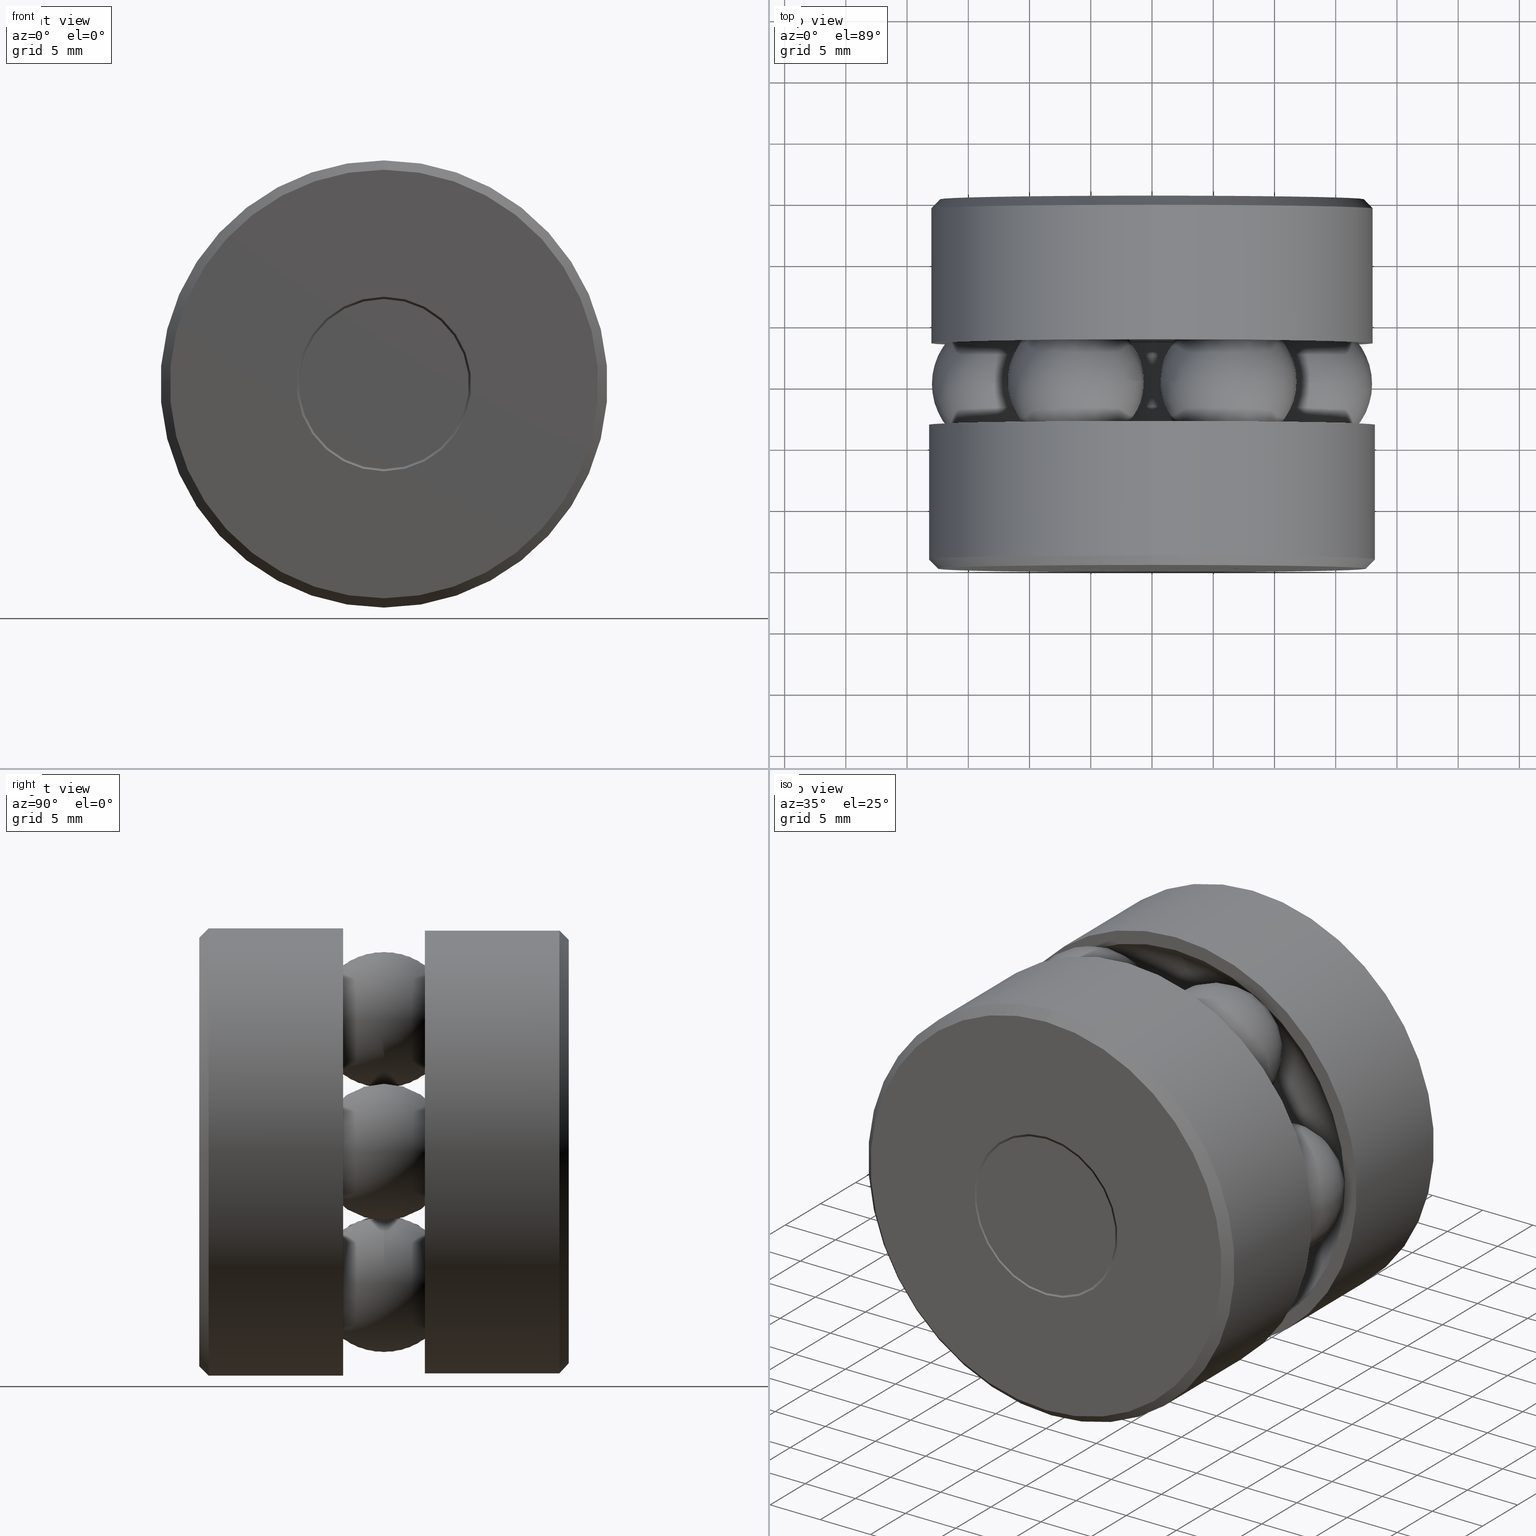
[diagram: canonical four-view strip — front | top / right | iso, engineering-drawing reading convention]
A machine part, canonical four-view strip (front | top / right | iso — engineering-drawing reading convention). The complete STEP part file that produces these views, byte-faithful:
ISO-10303-21;
HEADER;
FILE_DESCRIPTION (( 'STEP AP203' ),
    '1' );
FILE_NAME ('T-114RG_T-114RG-1007.step',
    '2016-02-04T15:34:12',
    ( '' ),
    ( '' ),
    'SwSTEP 2.0',
    'SolidWorks 2016',
    '' );
FILE_SCHEMA (( 'CONFIG_CONTROL_DESIGN' ));
ENDSEC;

DATA;
#1 = ORIENTED_EDGE ( 'NONE', *, *, #177, .F. ) ;
#2 = LOCAL_TIME ( 10, 34, 12.00000000000000000, #139 ) ;
#3 = DIRECTION ( 'NONE',  ( 0.0000000000000000000, 0.0000000000000000000, -1.000000000000000000 ) ) ;
#4 = EDGE_LOOP ( 'NONE', ( #30 ) ) ;
#5 = ORIENTED_EDGE ( 'NONE', *, *, #341, .F. ) ;
#6 = AXIS2_PLACEMENT_3D ( 'NONE', #135, #46, #45 ) ;
#7 = EDGE_LOOP ( 'NONE', ( #401 ) ) ;
#8 = CLOSED_SHELL ( 'NONE', ( #379 ) ) ;
#9 = DIRECTION ( 'NONE',  ( -0.0000000000000000000, 1.000000000000000000, -0.0000000000000000000 ) ) ;
#10 = CARTESIAN_POINT ( 'NONE',  ( 0.0000000000000000000, 0.7251500000000001800, 0.0000000000000000000 ) ) ;
#11 = AXIS2_PLACEMENT_3D ( 'NONE', #302, #65, #26 ) ;
#12 = ADVANCED_FACE ( 'NONE', ( ), #488, .T. ) ;
#13 = AXIS2_PLACEMENT_3D ( 'NONE', #412, #126, #59 ) ;
#14 = EDGE_LOOP ( 'NONE', ( #58 ) ) ;
#15 = ADVANCED_FACE ( 'NONE', ( #483, #487 ), #242, .T. ) ;
#16 = CALENDAR_DATE ( 2016, 4, 2 ) ;
#17 = MANIFOLD_SOLID_BREP ( 'Revolve3', #8 ) ;
#18 = DIRECTION ( 'NONE',  ( -0.0000000000000000000, 1.000000000000000000, -0.0000000000000000000 ) ) ;
#19 = PERSON_AND_ORGANIZATION_ROLE ( 'creator' ) ;
#20 = DIRECTION ( 'NONE',  ( 0.0000000000000000000, 0.0000000000000000000, 1.000000000000000000 ) ) ;
#21 = PRODUCT_DEFINITION_FORMATION_WITH_SPECIFIED_SOURCE ( 'ANY', '', #550, .NOT_KNOWN. ) ;
#22 = ORIENTED_EDGE ( 'NONE', *, *, #51, .T. ) ;
#23 = EDGE_LOOP ( 'NONE', ( #495 ) ) ;
#24 = CARTESIAN_POINT ( 'NONE',  ( 0.0000000000000000000, 0.1484375000000001100, 0.0000000000000000000 ) ) ;
#25 = FACE_OUTER_BOUND ( 'NONE', #497, .T. ) ;
#26 = DIRECTION ( 'NONE',  ( 0.0000000000000000000, 0.0000000000000000000, 1.000000000000000000 ) ) ;
#27 = ORIENTED_EDGE ( 'NONE', *, *, #362, .F. ) ;
#28 = EDGE_LOOP ( 'NONE', ( #402 ) ) ;
#29 = AXIS2_PLACEMENT_3D ( 'NONE', #208, #343, #245 ) ;
#30 = ORIENTED_EDGE ( 'NONE', *, *, #78, .F. ) ;
#31 = PERSON_AND_ORGANIZATION ( #514, #169 ) ;
#32 = AXIS2_PLACEMENT_3D ( 'NONE', #510, #542, #474 ) ;
#33 = DIRECTION ( 'NONE',  ( 0.0000000000000000000, -1.000000000000000000, 0.0000000000000000000 ) ) ;
#34 = EDGE_LOOP ( 'NONE', ( #511 ) ) ;
#35 = DIRECTION ( 'NONE',  ( 0.5000000000000101000, 0.0000000000000000000, 0.8660254037844328200 ) ) ;
#36 = PLANE ( 'NONE',  #290 ) ;
#37 = DIRECTION ( 'NONE',  ( 0.0000000000000000000, 0.0000000000000000000, 1.000000000000000000 ) ) ;
#38 = DIRECTION ( 'NONE',  ( 0.0000000000000000000, 0.0000000000000000000, -1.000000000000000000 ) ) ;
#39 = ORIENTED_EDGE ( 'NONE', *, *, #362, .T. ) ;
#40 = FACE_OUTER_BOUND ( 'NONE', #309, .T. ) ;
#41 = CARTESIAN_POINT ( 'NONE',  ( 0.0000000000000000000, -1.119366217046053200E-017, 0.0000000000000000000 ) ) ;
#42 = CARTESIAN_POINT ( 'NONE',  ( 0.0000000000000000000, 0.7251500000000000700, 0.0000000000000000000 ) ) ;
#43 = CLOSED_SHELL ( 'NONE', ( #489 ) ) ;
#44 = CARTESIAN_POINT ( 'NONE',  ( 0.0000000000000000000, 0.0000000000000000000, 0.0000000000000000000 ) ) ;
#45 = DIRECTION ( 'NONE',  ( 0.0000000000000000000, 0.0000000000000000000, 1.000000000000000000 ) ) ;
#46 = DIRECTION ( 'NONE',  ( -0.0000000000000000000, 1.000000000000000000, -0.0000000000000000000 ) ) ;
#47 = ORIENTED_EDGE ( 'NONE', *, *, #330, .T. ) ;
#48 = APPLICATION_CONTEXT ( 'configuration controlled 3d designs of mechanical parts and assemblies' ) ;
#49 = CLOSED_SHELL ( 'NONE', ( #454, #256, #217, #524, #491, #301, #265, #15 ) ) ;
#50 = DIRECTION ( 'NONE',  ( 0.0000000000000000000, 0.0000000000000000000, 1.000000000000000000 ) ) ;
#51 = EDGE_CURVE ( 'NONE', #377, #377, #175, .T. ) ;
#52 =( CONVERSION_BASED_UNIT ( 'INCH', #64 ) LENGTH_UNIT ( ) NAMED_UNIT ( #127 ) );
#53 = FACE_BOUND ( 'NONE', #519, .T. ) ;
#54 = DIRECTION ( 'NONE',  ( 0.0000000000000000000, 0.0000000000000000000, 1.000000000000000000 ) ) ;
#55 = APPROVAL ( #152, 'UNSPECIFIED' ) ;
#56 = FACE_OUTER_BOUND ( 'NONE', #254, .T. ) ;
#57 = CARTESIAN_POINT ( 'NONE',  ( 0.0000000000000000000, 1.187500000000000000, 0.0000000000000000000 ) ) ;
#58 = ORIENTED_EDGE ( 'NONE', *, *, #322, .T. ) ;
#59 = DIRECTION ( 'NONE',  ( 0.0000000000000000000, 0.0000000000000000000, 1.000000000000000000 ) ) ;
#60 = CARTESIAN_POINT ( 'NONE',  ( -0.3155499999999999400, 0.4623499999999999800, 0.0000000000000000000 ) ) ;
#61 = DIRECTION ( 'NONE',  ( 0.0000000000000000000, 0.0000000000000000000, 1.000000000000000000 ) ) ;
#62 = FACE_OUTER_BOUND ( 'NONE', #7, .T. ) ;
#63 = CIRCLE ( 'NONE', #455, 0.7187500000000000000 ) ;
#64 = LENGTH_MEASURE_WITH_UNIT ( LENGTH_MEASURE( 0.02539999999999999900 ), #536 );
#65 = DIRECTION ( 'NONE',  ( -0.0000000000000000000, 1.000000000000000000, -0.0000000000000000000 ) ) ;
#66 = CARTESIAN_POINT ( 'NONE',  ( -0.2734374999999987200, 0.0000000000000000000, 0.0000000000000000000 ) ) ;
#67 = CARTESIAN_POINT ( 'NONE',  ( 0.2453750000000019800, 0.5937500000000000000, 0.4250019669072122000 ) ) ;
#68 = AXIS2_PLACEMENT_3D ( 'NONE', #380, #453, #167 ) ;
#69 = ADVANCED_FACE ( 'NONE', ( #168, #478 ), #161, .F. ) ;
#70 = CARTESIAN_POINT ( 'NONE',  ( 0.0000000000000000000, 0.4623500000000002100, 0.0000000000000000000 ) ) ;
#71 = CARTESIAN_POINT ( 'NONE',  ( 0.0000000000000000000, 0.03000000000000025600, 0.0000000000000000000 ) ) ;
#72 = ADVANCED_FACE ( 'NONE', ( ), #465, .T. ) ;
#73 = DIRECTION ( 'NONE',  ( 0.0000000000000000000, -1.000000000000000000, 0.0000000000000000000 ) ) ;
#74 = CIRCLE ( 'NONE', #354, 0.1300000000000001400 ) ;
#75 = COORDINATED_UNIVERSAL_TIME_OFFSET ( 5, 0, .BEHIND. ) ;
#76 = CARTESIAN_POINT ( 'NONE',  ( 0.0000000000000000000, 1.157499999999999500, 0.0000000000000000000 ) ) ;
#77 = ORIENTED_EDGE ( 'NONE', *, *, #134, .F. ) ;
#78 = EDGE_CURVE ( 'NONE', #462, #462, #460, .T. ) ;
#79 = FACE_OUTER_BOUND ( 'NONE', #485, .T. ) ;
#80 = FACE_BOUND ( 'NONE', #278, .T. ) ;
#81 = VERTEX_POINT ( 'NONE', #438 ) ;
#82 = AXIS2_PLACEMENT_3D ( 'NONE', #204, #160, #282 ) ;
#83 = CARTESIAN_POINT ( 'NONE',  ( 0.0000000000000000000, 1.039062500000000000, 0.1250000000000001900 ) ) ;
#84 = EDGE_CURVE ( 'NONE', #367, #367, #162, .T. ) ;
#85 = DIRECTION ( 'NONE',  ( -0.0000000000000000000, 1.000000000000000000, -0.0000000000000000000 ) ) ;
#86 = CARTESIAN_POINT ( 'NONE',  ( 0.0000000000000000000, 0.7251500000000001800, 0.3155500000000000000 ) ) ;
#87 = ADVANCED_BREP_SHAPE_REPRESENTATION ( 'T-114RG_T-114RG-1007', ( #394, #304, #481, #17, #141, #248, #340, #430, #388, #395 ), #264 ) ;
#88 = FACE_OUTER_BOUND ( 'NONE', #295, .T. ) ;
#89 = EDGE_CURVE ( 'NONE', #255, #255, #456, .T. ) ;
#90 = LOCAL_TIME ( 10, 34, 12.00000000000000000, #220 ) ;
#91 = DIRECTION ( 'NONE',  ( 0.0000000000000000000, 0.0000000000000000000, 1.000000000000000000 ) ) ;
#92 = CC_DESIGN_APPROVAL ( #55, ( #21 ) ) ;
#93 = EDGE_LOOP ( 'NONE', ( #212 ) ) ;
#94 = PLANE ( 'NONE',  #153 ) ;
#95 = DIRECTION ( 'NONE',  ( -0.0000000000000000000, 1.000000000000000000, 0.0000000000000000000 ) ) ;
#96 = CIRCLE ( 'NONE', #272, 0.2734374999999987200 ) ;
#97 = CYLINDRICAL_SURFACE ( 'NONE', #82, 0.7117499999999999900 ) ;
#98 = VERTEX_POINT ( 'NONE', #501 ) ;
#99 = AXIS2_PLACEMENT_3D ( 'NONE', #207, #447, #411 ) ;
#100 = PRODUCT_DEFINITION_SHAPE ( 'NONE', 'NONE',  #444 ) ;
#101 = MECHANICAL_CONTEXT ( 'NONE', #406, 'mechanical' ) ;
#102 = DIRECTION ( 'NONE',  ( -0.0000000000000000000, 1.000000000000000000, -0.0000000000000000000 ) ) ;
#103 = APPLICATION_PROTOCOL_DEFINITION ( 'international standard', 'config_control_design', 1994, #406 ) ;
#104 = AXIS2_PLACEMENT_3D ( 'NONE', #312, #356, #539 ) ;
#105 = FACE_OUTER_BOUND ( 'NONE', #4, .T. ) ;
#106 = APPROVAL_DATE_TIME ( #232, #55 ) ;
#107 = APPROVAL_ROLE ( '' ) ;
#108 = EDGE_CURVE ( 'NONE', #132, #132, #449, .T. ) ;
#109 = DIRECTION ( 'NONE',  ( -0.0000000000000000000, 1.000000000000000000, -0.0000000000000000000 ) ) ;
#110 = PLANE ( 'NONE',  #439 ) ;
#111 = TOROIDAL_SURFACE ( 'NONE', #11, 0.4907499999999999600, 0.2190000000000001100 ) ;
#112 = CARTESIAN_POINT ( 'NONE',  ( 0.0000000000000000000, 1.187500000000000000, 0.0000000000000000000 ) ) ;
#113 = DIRECTION ( 'NONE',  ( 0.0000000000000000000, 0.0000000000000000000, 1.000000000000000000 ) ) ;
#114 = FACE_OUTER_BOUND ( 'NONE', #546, .T. ) ;
#115 = VERTEX_POINT ( 'NONE', #471 ) ;
#116 = SECURITY_CLASSIFICATION_LEVEL ( 'unclassified' ) ;
#117 = CARTESIAN_POINT ( 'NONE',  ( -0.2805085678118639500, -4.784046474346937400E-017, 0.0000000000000000000 ) ) ;
#118 = PERSON_AND_ORGANIZATION_ROLE ( 'design_supplier' ) ;
#119 = ADVANCED_FACE ( 'NONE', ( #473 ), #523, .T. ) ;
#120 = EDGE_CURVE ( 'NONE', #548, #548, #180, .T. ) ;
#121 = DIRECTION ( 'NONE',  ( 0.0000000000000000000, -1.000000000000000000, 0.0000000000000000000 ) ) ;
#122 = FACE_OUTER_BOUND ( 'NONE', #14, .T. ) ;
#123 = ADVANCED_FACE ( 'NONE', ( #461, #146 ), #110, .T. ) ;
#124 = APPROVAL_PERSON_ORGANIZATION ( #250, #55, #515 ) ;
#125 = AXIS2_PLACEMENT_3D ( 'NONE', #241, #206, #113 ) ;
#126 = DIRECTION ( 'NONE',  ( -0.0000000000000000000, 1.000000000000000000, -0.0000000000000000000 ) ) ;
#127 = DIMENSIONAL_EXPONENTS ( 1.000000000000000000, 0.0000000000000000000, 0.0000000000000000000, 0.0000000000000000000, 0.0000000000000000000, 0.0000000000000000000, 0.0000000000000000000 ) ;
#128 = CC_DESIGN_PERSON_AND_ORGANIZATION_ASSIGNMENT ( #529, #19, ( #21 ) ) ;
#129 = FACE_OUTER_BOUND ( 'NONE', #521, .T. ) ;
#130 = FACE_BOUND ( 'NONE', #239, .T. ) ;
#131 = DIRECTION ( 'NONE',  ( -0.0000000000000000000, 1.000000000000000000, -0.0000000000000000000 ) ) ;
#132 = VERTEX_POINT ( 'NONE', #525 ) ;
#133 = DIRECTION ( 'NONE',  ( -0.0000000000000000000, 1.000000000000000000, -0.0000000000000000000 ) ) ;
#134 = EDGE_CURVE ( 'NONE', #450, #450, #448, .T. ) ;
#135 = CARTESIAN_POINT ( 'NONE',  ( 0.0000000000000000000, 1.036991432188134800, 0.0000000000000000000 ) ) ;
#136 = PLANE ( 'NONE',  #512 ) ;
#137 = EDGE_CURVE ( 'NONE', #351, #351, #435, .T. ) ;
#138 = CIRCLE ( 'NONE', #452, 0.6659499999999999300 ) ;
#139 = COORDINATED_UNIVERSAL_TIME_OFFSET ( 5, 0, .BEHIND. ) ;
#140 = AXIS2_PLACEMENT_3D ( 'NONE', #231, #95, #466 ) ;
#141 = MANIFOLD_SOLID_BREP ( 'BALLS[1]', #188 ) ;
#142 = SPHERICAL_SURFACE ( 'NONE', #526, 0.2190000000000000300 ) ;
#143 = CARTESIAN_POINT ( 'NONE',  ( -0.4907499999999999600, 0.5937500000000000000, 0.0000000000000000000 ) ) ;
#144 = DIRECTION ( 'NONE',  ( 0.0000000000000000000, 0.0000000000000000000, 1.000000000000000000 ) ) ;
#145 = CARTESIAN_POINT ( 'NONE',  ( 0.0000000000000000000, 1.036991432188134800, 0.0000000000000000000 ) ) ;
#146 = FACE_BOUND ( 'NONE', #547, .T. ) ;
#147 = EDGE_CURVE ( 'NONE', #240, #240, #436, .T. ) ;
#148 = EDGE_LOOP ( 'NONE', ( #516 ) ) ;
#149 = CONICAL_SURFACE ( 'NONE', #199, 0.2805085678118639500, 0.7853981633974427300 ) ;
#150 = DIRECTION ( 'NONE',  ( 0.0000000000000000000, 0.0000000000000000000, 1.000000000000000000 ) ) ;
#151 = CARTESIAN_POINT ( 'NONE',  ( 0.0000000000000000000, 1.039062500000000000, 0.0000000000000000000 ) ) ;
#152 = APPROVAL_STATUS ( 'not_yet_approved' ) ;
#153 = AXIS2_PLACEMENT_3D ( 'NONE', #60, #543, #182 ) ;
#154 = PERSON_AND_ORGANIZATION_ROLE ( 'creator' ) ;
#155 = TOROIDAL_SURFACE ( 'NONE', #403, 0.4907499999999999600, 0.2190000000000000300 ) ;
#156 = LOCAL_TIME ( 10, 34, 12.00000000000000000, #274 ) ;
#157 = CARTESIAN_POINT ( 'NONE',  ( 0.0000000000000000000, 1.187500000000000000, 0.2734374999999989500 ) ) ;
#158 = DIRECTION ( 'NONE',  ( -0.0000000000000000000, 1.000000000000000000, -0.0000000000000000000 ) ) ;
#159 = CC_DESIGN_PERSON_AND_ORGANIZATION_ASSIGNMENT ( #432, #118, ( #21 ) ) ;
#160 = DIRECTION ( 'NONE',  ( -0.0000000000000000000, 1.000000000000000000, -0.0000000000000000000 ) ) ;
#161 = CONICAL_SURFACE ( 'NONE', #6, 0.1300000000000002300, 0.7853981633974435100 ) ;
#162 = CIRCLE ( 'NONE', #13, 0.7117499999999999900 ) ;
#163 = CYLINDRICAL_SURFACE ( 'NONE', #229, 0.1300000000000000900 ) ;
#164 = DIRECTION ( 'NONE',  ( -0.0000000000000000000, 1.000000000000000000, -0.0000000000000000000 ) ) ;
#165 = EDGE_LOOP ( 'NONE', ( #537 ) ) ;
#166 = ADVANCED_FACE ( 'NONE', ( #442, #426 ), #155, .F. ) ;
#167 = DIRECTION ( 'NONE',  ( 0.0000000000000000000, 0.0000000000000000000, 1.000000000000000000 ) ) ;
#168 = FACE_OUTER_BOUND ( 'NONE', #201, .T. ) ;
#169 = ORGANIZATION ( 'UNSPECIFIED', 'UNSPECIFIED', '' ) ;
#170 = EDGE_CURVE ( 'NONE', #115, #115, #138, .T. ) ;
#171 = ADVANCED_FACE ( 'NONE', ( #431, #129 ), #413, .T. ) ;
#172 = AXIS2_PLACEMENT_3D ( 'NONE', #67, #173, #359 ) ;
#173 = DIRECTION ( 'NONE',  ( -0.8660254037844362700, 0.0000000000000000000, 0.5000000000000041100 ) ) ;
#174 = DIRECTION ( 'NONE',  ( -0.0000000000000000000, 1.000000000000000000, 0.0000000000000000000 ) ) ;
#175 = CIRCLE ( 'NONE', #288, 0.6817500000000000800 ) ;
#176 = CYLINDRICAL_SURFACE ( 'NONE', #104, 0.7187500000000000000 ) ;
#177 = EDGE_CURVE ( 'NONE', #534, #534, #414, .T. ) ;
#178 = ORIENTED_EDGE ( 'NONE', *, *, #134, .T. ) ;
#179 = CARTESIAN_POINT ( 'NONE',  ( 0.0000000000000000000, 0.7251500000000000700, 0.1300000000000001400 ) ) ;
#180 = CIRCLE ( 'NONE', #99, 0.3155500000000000000 ) ;
#181 = AXIS2_PLACEMENT_3D ( 'NONE', #76, #102, #271 ) ;
#182 = DIRECTION ( 'NONE',  ( 0.0000000000000000000, 0.0000000000000000000, 1.000000000000000000 ) ) ;
#183 = ORIENTED_EDGE ( 'NONE', *, *, #108, .T. ) ;
#184 = DIRECTION ( 'NONE',  ( 0.0000000000000000000, 0.0000000000000000000, 1.000000000000000000 ) ) ;
#185 = DIRECTION ( 'NONE',  ( 0.0000000000000000000, 0.0000000000000000000, -1.000000000000000000 ) ) ;
#186 = PLANE ( 'NONE',  #216 ) ;
#187 = CARTESIAN_POINT ( 'NONE',  ( 0.0000000000000000000, 0.4623499999999997600, 0.6659499999999999300 ) ) ;
#188 = CLOSED_SHELL ( 'NONE', ( #342 ) ) ;
#189 = APPROVAL_DATE_TIME ( #308, #277 ) ;
#190 = SECURITY_CLASSIFICATION ( '', '', #116 ) ;
#191 = DIRECTION ( 'NONE',  ( -0.0000000000000000000, 1.000000000000000000, -0.0000000000000000000 ) ) ;
#192 = CARTESIAN_POINT ( 'NONE',  ( 0.0000000000000000000, 1.187500000000000000, 0.6817500000000000800 ) ) ;
#193 = ORIENTED_EDGE ( 'NONE', *, *, #358, .F. ) ;
#194 = DIRECTION ( 'NONE',  ( 0.0000000000000000000, 0.0000000000000000000, 1.000000000000000000 ) ) ;
#195 = CLOSED_SHELL ( 'NONE', ( #69, #415, #527, #166, #303, #259, #385, #123 ) ) ;
#196 = CLOSED_SHELL ( 'NONE', ( #417 ) ) ;
#197 = APPROVAL_STATUS ( 'not_yet_approved' ) ;
#198 = CLOSED_SHELL ( 'NONE', ( #119, #458, #338, #171, #215 ) ) ;
#199 = AXIS2_PLACEMENT_3D ( 'NONE', #41, #391, #185 ) ;
#200 = UNCERTAINTY_MEASURE_WITH_UNIT (LENGTH_MEASURE( 1.000000000000000100E-005 ), #52, 'distance_accuracy_value', 'NONE');
#201 = EDGE_LOOP ( 'NONE', ( #321 ) ) ;
#202 = APPROVAL_PERSON_ORGANIZATION ( #320, #277, #107 ) ;
#203 = CARTESIAN_POINT ( 'NONE',  ( -0.2453750000000049200, 0.5937500000000000000, -0.4250019669072103200 ) ) ;
#204 = CARTESIAN_POINT ( 'NONE',  ( 0.0000000000000000000, 0.0000000000000000000, 0.0000000000000000000 ) ) ;
#205 = ORIENTED_EDGE ( 'NONE', *, *, #51, .F. ) ;
#206 = DIRECTION ( 'NONE',  ( -0.0000000000000000000, 1.000000000000000000, 0.0000000000000000000 ) ) ;
#207 = CARTESIAN_POINT ( 'NONE',  ( 0.0000000000000000000, 0.7251500000000001800, 0.0000000000000000000 ) ) ;
#208 = CARTESIAN_POINT ( 'NONE',  ( 0.4907499999999999600, 0.5937500000000000000, -3.426888934074535000E-015 ) ) ;
#209 = APPROVAL_STATUS ( 'not_yet_approved' ) ;
#210 = AXIS2_PLACEMENT_3D ( 'NONE', #266, #18, #263 ) ;
#211 = ORIENTED_EDGE ( 'NONE', *, *, #251, .F. ) ;
#212 = ORIENTED_EDGE ( 'NONE', *, *, #147, .T. ) ;
#213 = VERTEX_POINT ( 'NONE', #157 ) ;
#214 = DIRECTION ( 'NONE',  ( 0.8660254037844328200, 0.0000000000000000000, -0.5000000000000101000 ) ) ;
#215 = ADVANCED_FACE ( 'NONE', ( #122, #130 ), #398, .T. ) ;
#216 = AXIS2_PLACEMENT_3D ( 'NONE', #545, #305, #531 ) ;
#217 = ADVANCED_FACE ( 'NONE', ( #421, #408 ), #136, .T. ) ;
#218 = CARTESIAN_POINT ( 'NONE',  ( 0.0000000000000000000, 0.4623499999999999300, 0.0000000000000000000 ) ) ;
#219 = ORIENTED_EDGE ( 'NONE', *, *, #120, .F. ) ;
#220 = COORDINATED_UNIVERSAL_TIME_OFFSET ( 5, 0, .BEHIND. ) ;
#221 = DIRECTION ( 'NONE',  ( 0.0000000000000000000, -0.0000000000000000000, -1.000000000000000000 ) ) ;
#222 = CC_DESIGN_PERSON_AND_ORGANIZATION_ASSIGNMENT ( #329, #246, ( #190 ) ) ;
#223 = EDGE_LOOP ( 'NONE', ( #498 ) ) ;
#224 = CARTESIAN_POINT ( 'NONE',  ( 0.0000000000000000000, 0.1484375000000001100, 0.0000000000000000000 ) ) ;
#225 = EDGE_LOOP ( 'NONE', ( #286 ) ) ;
#226 = ORIENTED_EDGE ( 'NONE', *, *, #170, .T. ) ;
#227 = VERTEX_POINT ( 'NONE', #396 ) ;
#228 = CARTESIAN_POINT ( 'NONE',  ( 0.0000000000000000000, 1.187500000000000000, 0.0000000000000000000 ) ) ;
#229 = AXIS2_PLACEMENT_3D ( 'NONE', #260, #131, #144 ) ;
#230 = EDGE_LOOP ( 'NONE', ( #183 ) ) ;
#231 = CARTESIAN_POINT ( 'NONE',  ( 0.0000000000000000000, 1.187500000000000000, 0.0000000000000000000 ) ) ;
#232 = DATE_AND_TIME ( #345, #443 ) ;
#233 = DIRECTION ( 'NONE',  ( 1.000000000000000000, 0.0000000000000000000, 0.0000000000000000000 ) ) ;
#234 = DIRECTION ( 'NONE',  ( -0.0000000000000000000, 1.000000000000000000, -0.0000000000000000000 ) ) ;
#235 = DIRECTION ( 'NONE',  ( -0.8660254037844399300, 0.0000000000000000000, -0.4999999999999979500 ) ) ;
#236 = AXIS2_PLACEMENT_3D ( 'NONE', #337, #164, #419 ) ;
#237 = CARTESIAN_POINT ( 'NONE',  ( -0.2453749999999989800, 0.5937500000000000000, 0.4250019669072138100 ) ) ;
#238 = EDGE_LOOP ( 'NONE', ( #39 ) ) ;
#239 = EDGE_LOOP ( 'NONE', ( #1 ) ) ;
#240 = VERTEX_POINT ( 'NONE', #257 ) ;
#241 = CARTESIAN_POINT ( 'NONE',  ( -0.7187500000000000000, 0.4623499999999998700, 0.0000000000000000000 ) ) ;
#242 = PLANE ( 'NONE',  #125 ) ;
#243 = CARTESIAN_POINT ( 'NONE',  ( 0.0000000000000000000, 0.0000000000000000000, 0.0000000000000000000 ) ) ;
#244 = AXIS2_PLACEMENT_3D ( 'NONE', #331, #85, #368 ) ;
#245 = DIRECTION ( 'NONE',  ( -1.000000000000000000, 0.0000000000000000000, 6.982962677686267500E-015 ) ) ;
#246 = PERSON_AND_ORGANIZATION_ROLE ( 'classification_officer' ) ;
#247 = AXIS2_PLACEMENT_3D ( 'NONE', #446, #445, #374 ) ;
#248 = MANIFOLD_SOLID_BREP ( 'BALLS[2]', #43 ) ;
#249 = CLOSED_SHELL ( 'NONE', ( #72 ) ) ;
#250 = PERSON_AND_ORGANIZATION ( #514, #169 ) ;
#251 = EDGE_CURVE ( 'NONE', #437, #437, #404, .T. ) ;
#252 = CC_DESIGN_DATE_AND_TIME_ASSIGNMENT ( #422, #496, ( #190 ) ) ;
#253 = ORIENTED_EDGE ( 'NONE', *, *, #316, .F. ) ;
#254 = EDGE_LOOP ( 'NONE', ( #5 ) ) ;
#255 = VERTEX_POINT ( 'NONE', #187 ) ;
#256 = ADVANCED_FACE ( 'NONE', ( #405, #114 ), #382, .T. ) ;
#257 = CARTESIAN_POINT ( 'NONE',  ( 0.0000000000000000000, 0.4623499999999999300, 0.7187500000000000000 ) ) ;
#258 = DIRECTION ( 'NONE',  ( -0.0000000000000000000, 1.000000000000000000, -0.0000000000000000000 ) ) ;
#259 = ADVANCED_FACE ( 'NONE', ( #425, #393 ), #97, .T. ) ;
#260 = CARTESIAN_POINT ( 'NONE',  ( 0.0000000000000000000, 0.0000000000000000000, 0.0000000000000000000 ) ) ;
#261 = ORIENTED_EDGE ( 'NONE', *, *, #315, .F. ) ;
#262 = PERSON_AND_ORGANIZATION ( #514, #169 ) ;
#263 = DIRECTION ( 'NONE',  ( 0.0000000000000000000, 0.0000000000000000000, 1.000000000000000000 ) ) ;
#264 =( GEOMETRIC_REPRESENTATION_CONTEXT ( 3 ) GLOBAL_UNCERTAINTY_ASSIGNED_CONTEXT ( ( #200 ) ) GLOBAL_UNIT_ASSIGNED_CONTEXT ( ( #52, #284, #371 ) ) REPRESENTATION_CONTEXT ( 'NONE', 'WORKASPACE' ) );
#265 = ADVANCED_FACE ( 'NONE', ( #387, #105 ), #111, .F. ) ;
#266 = CARTESIAN_POINT ( 'NONE',  ( 0.0000000000000000000, 0.0000000000000000000, 0.0000000000000000000 ) ) ;
#267 = EDGE_LOOP ( 'NONE', ( #520 ) ) ;
#268 = EDGE_LOOP ( 'NONE', ( #47 ) ) ;
#269 = DIRECTION ( 'NONE',  ( 0.0000000000000000000, -0.0000000000000000000, -1.000000000000000000 ) ) ;
#270 = AXIS2_PLACEMENT_3D ( 'NONE', #218, #459, #418 ) ;
#271 = DIRECTION ( 'NONE',  ( 0.0000000000000000000, 0.0000000000000000000, 1.000000000000000000 ) ) ;
#272 = AXIS2_PLACEMENT_3D ( 'NONE', #44, #191, #472 ) ;
#273 = ORIENTED_EDGE ( 'NONE', *, *, #177, .T. ) ;
#274 = COORDINATED_UNIVERSAL_TIME_OFFSET ( 5, 0, .BEHIND. ) ;
#275 = CARTESIAN_POINT ( 'NONE',  ( 0.0000000000000000000, 0.4623500000000002100, 0.1300000000000000900 ) ) ;
#276 = DIRECTION ( 'NONE',  ( -0.0000000000000000000, 1.000000000000000000, -0.0000000000000000000 ) ) ;
#277 = APPROVAL ( #209, 'UNSPECIFIED' ) ;
#278 = EDGE_LOOP ( 'NONE', ( #205 ) ) ;
#279 = DIRECTION ( 'NONE',  ( 0.8660254037844433700, -0.0000000000000000000, 0.4999999999999919500 ) ) ;
#280 = ORIENTED_EDGE ( 'NONE', *, *, #316, .T. ) ;
#281 = FACE_OUTER_BOUND ( 'NONE', #504, .T. ) ;
#282 = DIRECTION ( 'NONE',  ( 0.0000000000000000000, 0.0000000000000000000, 1.000000000000000000 ) ) ;
#283 = ORIENTED_EDGE ( 'NONE', *, *, #170, .F. ) ;
#284 =( NAMED_UNIT ( * ) PLANE_ANGLE_UNIT ( ) SI_UNIT ( $, .RADIAN. ) );
#285 = ORIENTED_EDGE ( 'NONE', *, *, #78, .T. ) ;
#286 = ORIENTED_EDGE ( 'NONE', *, *, #349, .F. ) ;
#287 = DIRECTION ( 'NONE',  ( 0.0000000000000000000, 0.0000000000000000000, 1.000000000000000000 ) ) ;
#288 = AXIS2_PLACEMENT_3D ( 'NONE', #228, #158, #54 ) ;
#289 = DIRECTION ( 'NONE',  ( -0.0000000000000000000, 1.000000000000000000, -0.0000000000000000000 ) ) ;
#290 = AXIS2_PLACEMENT_3D ( 'NONE', #463, #33, #468 ) ;
#291 = DIRECTION ( 'NONE',  ( 0.0000000000000000000, -1.000000000000000000, 0.0000000000000000000 ) ) ;
#292 = EDGE_LOOP ( 'NONE', ( #273 ) ) ;
#293 = ORIENTED_EDGE ( 'NONE', *, *, #147, .F. ) ;
#294 = FACE_BOUND ( 'NONE', #410, .T. ) ;
#295 = EDGE_LOOP ( 'NONE', ( #513 ) ) ;
#296 = AXIS2_PLACEMENT_3D ( 'NONE', #203, #214, #35 ) ;
#297 = EDGE_LOOP ( 'NONE', ( #499 ) ) ;
#298 = ORIENTED_EDGE ( 'NONE', *, *, #341, .T. ) ;
#299 = AXIS2_PLACEMENT_3D ( 'NONE', #151, #360, #91 ) ;
#300 = PLANE ( 'NONE',  #140 ) ;
#301 = ADVANCED_FACE ( 'NONE', ( #372, #375 ), #94, .T. ) ;
#302 = CARTESIAN_POINT ( 'NONE',  ( 0.0000000000000000000, 0.5937500000000000000, 0.0000000000000000000 ) ) ;
#303 = ADVANCED_FACE ( 'NONE', ( #392, #88 ), #186, .T. ) ;
#304 = MANIFOLD_SOLID_BREP ( 'Revolve2[2]', #195 ) ;
#305 = DIRECTION ( 'NONE',  ( 0.0000000000000000000, -1.000000000000000000, 0.0000000000000000000 ) ) ;
#306 = CYLINDRICAL_SURFACE ( 'NONE', #32, 0.1300000000000001700 ) ;
#307 = EDGE_LOOP ( 'NONE', ( #261 ) ) ;
#308 = DATE_AND_TIME ( #409, #505 ) ;
#309 = EDGE_LOOP ( 'NONE', ( #77 ) ) ;
#310 = CC_DESIGN_APPROVAL ( #277, ( #190 ) ) ;
#311 = ORIENTED_EDGE ( 'NONE', *, *, #330, .F. ) ;
#312 = CARTESIAN_POINT ( 'NONE',  ( 0.0000000000000000000, 0.0000000000000000000, 0.0000000000000000000 ) ) ;
#313 = FACE_OUTER_BOUND ( 'NONE', #238, .T. ) ;
#314 = FACE_OUTER_BOUND ( 'NONE', #376, .T. ) ;
#315 = EDGE_CURVE ( 'NONE', #336, #336, #366, .T. ) ;
#316 = EDGE_CURVE ( 'NONE', #227, #227, #350, .T. ) ;
#317 = CARTESIAN_POINT ( 'NONE',  ( 0.0000000000000000000, 0.1505085678118655800, 0.1300000000000000600 ) ) ;
#318 = CARTESIAN_POINT ( 'NONE',  ( 0.2453749999999960100, 0.5937500000000000000, -0.4250019669072154800 ) ) ;
#319 = SPHERICAL_SURFACE ( 'NONE', #500, 0.2190000000000000300 ) ;
#320 = PERSON_AND_ORGANIZATION ( #514, #169 ) ;
#321 = ORIENTED_EDGE ( 'NONE', *, *, #251, .T. ) ;
#322 = EDGE_CURVE ( 'NONE', #98, #98, #96, .T. ) ;
#323 = SPHERICAL_SURFACE ( 'NONE', #172, 0.2190000000000000300 ) ;
#324 = CIRCLE ( 'NONE', #428, 0.2734374999999989500 ) ;
#325 = VERTEX_POINT ( 'NONE', #464 ) ;
#326 = APPLICATION_PROTOCOL_DEFINITION ( 'international standard', 'config_control_design', 1994, #48 ) ;
#327 = AXIS2_PLACEMENT_3D ( 'NONE', #112, #234, #184 ) ;
#328 = CONICAL_SURFACE ( 'NONE', #327, 0.2734374999999989500, 0.7853981633974438400 ) ;
#329 = PERSON_AND_ORGANIZATION ( #514, #169 ) ;
#330 = EDGE_CURVE ( 'NONE', #522, #522, #348, .T. ) ;
#331 = CARTESIAN_POINT ( 'NONE',  ( 0.0000000000000000000, -1.119366217046053200E-017, 0.0000000000000000000 ) ) ;
#332 = EDGE_LOOP ( 'NONE', ( #434 ) ) ;
#333 = CC_DESIGN_SECURITY_CLASSIFICATION ( #190, ( #21 ) ) ;
#334 = FACE_OUTER_BOUND ( 'NONE', #267, .T. ) ;
#335 = FACE_OUTER_BOUND ( 'NONE', #165, .T. ) ;
#336 = VERTEX_POINT ( 'NONE', #361 ) ;
#337 = CARTESIAN_POINT ( 'NONE',  ( 0.0000000000000000000, -8.448726731647822000E-017, 0.0000000000000000000 ) ) ;
#338 = ADVANCED_FACE ( 'NONE', ( #365, #79 ), #328, .T. ) ;
#339 = DIRECTION ( 'NONE',  ( 0.0000000000000000000, 0.0000000000000000000, 1.000000000000000000 ) ) ;
#340 = MANIFOLD_SOLID_BREP ( 'BALLS[3]', #249 ) ;
#341 = EDGE_CURVE ( 'NONE', #427, #427, #74, .T. ) ;
#342 = ADVANCED_FACE ( 'NONE', ( ), #344, .T. ) ;
#343 = DIRECTION ( 'NONE',  ( 6.982962677686267500E-015, -0.0000000000000000000, 1.000000000000000000 ) ) ;
#344 = SPHERICAL_SURFACE ( 'NONE', #407, 0.2190000000000000300 ) ;
#345 = CALENDAR_DATE ( 2016, 4, 2 ) ;
#346 = CARTESIAN_POINT ( 'NONE',  ( 0.0000000000000000000, 0.1505085678118655800, 0.0000000000000000000 ) ) ;
#347 = CONICAL_SURFACE ( 'NONE', #480, 0.6817500000000000800, 0.7853981633974415100 ) ;
#348 = CIRCLE ( 'NONE', #299, 0.1250000000000001900 ) ;
#349 = EDGE_CURVE ( 'NONE', #325, #325, #355, .T. ) ;
#350 = CIRCLE ( 'NONE', #244, 0.2805085678118639500 ) ;
#351 = VERTEX_POINT ( 'NONE', #275 ) ;
#352 = AXIS2_PLACEMENT_3D ( 'NONE', #224, #289, #20 ) ;
#353 = DESIGN_CONTEXT ( 'detailed design', #48, 'design' ) ;
#354 = AXIS2_PLACEMENT_3D ( 'NONE', #42, #276, #470 ) ;
#355 = CIRCLE ( 'NONE', #381, 0.1300000000000002300 ) ;
#356 = DIRECTION ( 'NONE',  ( -0.0000000000000000000, 1.000000000000000000, -0.0000000000000000000 ) ) ;
#357 = DATE_AND_TIME ( #457, #2 ) ;
#358 = EDGE_CURVE ( 'NONE', #213, #213, #324, .T. ) ;
#359 = DIRECTION ( 'NONE',  ( -0.5000000000000041100, 0.0000000000000000000, -0.8660254037844363800 ) ) ;
#360 = DIRECTION ( 'NONE',  ( -0.0000000000000000000, 1.000000000000000000, -0.0000000000000000000 ) ) ;
#361 = CARTESIAN_POINT ( 'NONE',  ( 0.0000000000000000000, 1.157499999999999500, 0.7117499999999999900 ) ) ;
#362 = EDGE_CURVE ( 'NONE', #81, #81, #63, .T. ) ;
#363 = CARTESIAN_POINT ( 'NONE',  ( 0.0000000000000000000, 0.03000000000000025600, 0.0000000000000000000 ) ) ;
#364 = PRODUCT_RELATED_PRODUCT_CATEGORY ( 'detail', '', ( #550 ) ) ;
#365 = FACE_BOUND ( 'NONE', #268, .T. ) ;
#366 = CIRCLE ( 'NONE', #181, 0.7117499999999999900 ) ;
#367 = VERTEX_POINT ( 'NONE', #493 ) ;
#368 = DIRECTION ( 'NONE',  ( 0.0000000000000000000, 0.0000000000000000000, 1.000000000000000000 ) ) ;
#369 = DIRECTION ( 'NONE',  ( 0.0000000000000000000, 0.0000000000000000000, 1.000000000000000000 ) ) ;
#370 = DATE_TIME_ROLE ( 'creation_date' ) ;
#371 =( NAMED_UNIT ( * ) SI_UNIT ( $, .STERADIAN. ) SOLID_ANGLE_UNIT ( ) );
#372 = FACE_OUTER_BOUND ( 'NONE', #440, .T. ) ;
#373 = APPROVAL_DATE_TIME ( #467, #469 ) ;
#374 = DIRECTION ( 'NONE',  ( 0.0000000000000000000, 0.0000000000000000000, 1.000000000000000000 ) ) ;
#375 = FACE_BOUND ( 'NONE', #424, .T. ) ;
#376 = EDGE_LOOP ( 'NONE', ( #293 ) ) ;
#377 = VERTEX_POINT ( 'NONE', #192 ) ;
#378 = AXIS2_PLACEMENT_3D ( 'NONE', #24, #291, #3 ) ;
#379 = ADVANCED_FACE ( 'NONE', ( ), #319, .T. ) ;
#380 = CARTESIAN_POINT ( 'NONE',  ( 0.0000000000000000000, 0.4623499999999997600, 0.0000000000000000000 ) ) ;
#381 = AXIS2_PLACEMENT_3D ( 'NONE', #145, #508, #369 ) ;
#382 = CONICAL_SURFACE ( 'NONE', #535, 0.7187500000000000000, 0.7853981633974440600 ) ;
#383 = APPROVAL_PERSON_ORGANIZATION ( #479, #469, #549 ) ;
#384 = DIRECTION ( 'NONE',  ( -0.0000000000000000000, 1.000000000000000000, -0.0000000000000000000 ) ) ;
#385 = ADVANCED_FACE ( 'NONE', ( #334, #80 ), #347, .T. ) ;
#386 = CARTESIAN_POINT ( 'NONE',  ( -0.2805085678118641700, 1.187500000000000000, 0.0000000000000000000 ) ) ;
#387 = FACE_OUTER_BOUND ( 'NONE', #332, .T. ) ;
#388 = MANIFOLD_SOLID_BREP ( 'BALLS[5]', #482 ) ;
#389 = SHAPE_DEFINITION_REPRESENTATION ( #100, #87 ) ;
#390 = EDGE_LOOP ( 'NONE', ( #283 ) ) ;
#391 = DIRECTION ( 'NONE',  ( 0.0000000000000000000, -1.000000000000000000, 0.0000000000000000000 ) ) ;
#392 = FACE_BOUND ( 'NONE', #509, .T. ) ;
#393 = FACE_OUTER_BOUND ( 'NONE', #307, .T. ) ;
#394 = MANIFOLD_SOLID_BREP ( 'Revolve2[1]', #198 ) ;
#395 = AXIS2_PLACEMENT_3D ( 'NONE', #243, #287, #441 ) ;
#396 = CARTESIAN_POINT ( 'NONE',  ( 0.0000000000000000000, -1.119366217046053200E-017, 0.2805085678118639500 ) ) ;
#397 = DIRECTION ( 'NONE',  ( 0.4999999999999979500, 0.0000000000000000000, -0.8660254037844399300 ) ) ;
#398 = CONICAL_SURFACE ( 'NONE', #378, 0.1250000000000000300, 0.7853981633974437300 ) ;
#399 = CARTESIAN_POINT ( 'NONE',  ( 0.0000000000000000000, 0.4623499999999997600, 0.3155500000000000000 ) ) ;
#400 = DIRECTION ( 'NONE',  ( 0.0000000000000000000, 0.0000000000000000000, -1.000000000000000000 ) ) ;
#401 = ORIENTED_EDGE ( 'NONE', *, *, #358, .T. ) ;
#402 = ORIENTED_EDGE ( 'NONE', *, *, #84, .T. ) ;
#403 = AXIS2_PLACEMENT_3D ( 'NONE', #423, #258, #490 ) ;
#404 = CIRCLE ( 'NONE', #486, 0.2805085678118641700 ) ;
#405 = FACE_BOUND ( 'NONE', #230, .T. ) ;
#406 = APPLICATION_CONTEXT ( 'configuration controlled 3d designs of mechanical parts and assemblies' ) ;
#407 = AXIS2_PLACEMENT_3D ( 'NONE', #237, #235, #397 ) ;
#408 = FACE_OUTER_BOUND ( 'NONE', #34, .T. ) ;
#409 = CALENDAR_DATE ( 2016, 4, 2 ) ;
#410 = EDGE_LOOP ( 'NONE', ( #298 ) ) ;
#411 = DIRECTION ( 'NONE',  ( 0.0000000000000000000, 0.0000000000000000000, 1.000000000000000000 ) ) ;
#412 = CARTESIAN_POINT ( 'NONE',  ( 0.0000000000000000000, 0.7251500000000000700, 0.0000000000000000000 ) ) ;
#413 = CYLINDRICAL_SURFACE ( 'NONE', #210, 0.1250000000000001100 ) ;
#414 = CIRCLE ( 'NONE', #352, 0.1250000000000000300 ) ;
#415 = ADVANCED_FACE ( 'NONE', ( #335, #56 ), #306, .F. ) ;
#416 = AXIS2_PLACEMENT_3D ( 'NONE', #70, #384, #494 ) ;
#417 = ADVANCED_FACE ( 'NONE', ( ), #142, .T. ) ;
#418 = DIRECTION ( 'NONE',  ( 0.0000000000000000000, 0.0000000000000000000, 1.000000000000000000 ) ) ;
#419 = DIRECTION ( 'NONE',  ( 0.0000000000000000000, 0.0000000000000000000, 1.000000000000000000 ) ) ;
#420 = CC_DESIGN_PERSON_AND_ORGANIZATION_ASSIGNMENT ( #31, #477, ( #550 ) ) ;
#421 = FACE_BOUND ( 'NONE', #528, .T. ) ;
#422 = DATE_AND_TIME ( #517, #90 ) ;
#423 = CARTESIAN_POINT ( 'NONE',  ( 0.0000000000000000000, 0.5937500000000000000, 0.0000000000000000000 ) ) ;
#424 = EDGE_LOOP ( 'NONE', ( #533 ) ) ;
#425 = FACE_OUTER_BOUND ( 'NONE', #28, .T. ) ;
#426 = FACE_OUTER_BOUND ( 'NONE', #390, .T. ) ;
#427 = VERTEX_POINT ( 'NONE', #179 ) ;
#428 = AXIS2_PLACEMENT_3D ( 'NONE', #476, #540, #37 ) ;
#429 = CARTESIAN_POINT ( 'NONE',  ( 0.0000000000000000000, 1.187500000000000000, 0.0000000000000000000 ) ) ;
#430 = MANIFOLD_SOLID_BREP ( 'BALLS[4]', #196 ) ;
#431 = FACE_OUTER_BOUND ( 'NONE', #292, .T. ) ;
#432 = PERSON_AND_ORGANIZATION ( #514, #169 ) ;
#433 = AXIS2_PLACEMENT_3D ( 'NONE', #346, #451, #339 ) ;
#434 = ORIENTED_EDGE ( 'NONE', *, *, #89, .T. ) ;
#435 = CIRCLE ( 'NONE', #416, 0.1300000000000000900 ) ;
#436 = CIRCLE ( 'NONE', #270, 0.7187500000000000000 ) ;
#437 = VERTEX_POINT ( 'NONE', #502 ) ;
#438 = CARTESIAN_POINT ( 'NONE',  ( 0.0000000000000000000, 0.03000000000000025600, 0.7187500000000000000 ) ) ;
#439 = AXIS2_PLACEMENT_3D ( 'NONE', #386, #174, #530 ) ;
#440 = EDGE_LOOP ( 'NONE', ( #285 ) ) ;
#441 = DIRECTION ( 'NONE',  ( 1.000000000000000000, 0.0000000000000000000, 0.0000000000000000000 ) ) ;
#442 = FACE_OUTER_BOUND ( 'NONE', #297, .T. ) ;
#443 = LOCAL_TIME ( 10, 34, 12.00000000000000000, #538 ) ;
#444 = PRODUCT_DEFINITION ( 'UNKNOWN', '', #21, #353 ) ;
#445 = DIRECTION ( 'NONE',  ( -0.0000000000000000000, 1.000000000000000000, -0.0000000000000000000 ) ) ;
#446 = CARTESIAN_POINT ( 'NONE',  ( 0.0000000000000000000, 0.4623499999999997600, 0.0000000000000000000 ) ) ;
#447 = DIRECTION ( 'NONE',  ( -0.0000000000000000000, 1.000000000000000000, -0.0000000000000000000 ) ) ;
#448 = CIRCLE ( 'NONE', #433, 0.1300000000000000600 ) ;
#449 = CIRCLE ( 'NONE', #236, 0.6887499999999998600 ) ;
#450 = VERTEX_POINT ( 'NONE', #317 ) ;
#451 = DIRECTION ( 'NONE',  ( -0.0000000000000000000, 1.000000000000000000, -0.0000000000000000000 ) ) ;
#452 = AXIS2_PLACEMENT_3D ( 'NONE', #10, #9, #61 ) ;
#453 = DIRECTION ( 'NONE',  ( -0.0000000000000000000, 1.000000000000000000, -0.0000000000000000000 ) ) ;
#454 = ADVANCED_FACE ( 'NONE', ( #313, #314 ), #176, .T. ) ;
#455 = AXIS2_PLACEMENT_3D ( 'NONE', #363, #506, #194 ) ;
#456 = CIRCLE ( 'NONE', #68, 0.6659499999999999300 ) ;
#457 = CALENDAR_DATE ( 2016, 4, 2 ) ;
#458 = ADVANCED_FACE ( 'NONE', ( #62 ), #300, .T. ) ;
#459 = DIRECTION ( 'NONE',  ( -0.0000000000000000000, 1.000000000000000000, -0.0000000000000000000 ) ) ;
#460 = CIRCLE ( 'NONE', #247, 0.3155500000000000000 ) ;
#461 = FACE_OUTER_BOUND ( 'NONE', #532, .T. ) ;
#462 = VERTEX_POINT ( 'NONE', #399 ) ;
#463 = CARTESIAN_POINT ( 'NONE',  ( -0.3155500000000000000, 0.7251500000000000700, 0.0000000000000000000 ) ) ;
#464 = CARTESIAN_POINT ( 'NONE',  ( 0.0000000000000000000, 1.036991432188134800, 0.1300000000000002300 ) ) ;
#465 = SPHERICAL_SURFACE ( 'NONE', #29, 0.2190000000000000300 ) ;
#466 = DIRECTION ( 'NONE',  ( 0.0000000000000000000, 0.0000000000000000000, 1.000000000000000000 ) ) ;
#467 = DATE_AND_TIME ( #16, #156 ) ;
#468 = DIRECTION ( 'NONE',  ( 0.0000000000000000000, -0.0000000000000000000, -1.000000000000000000 ) ) ;
#469 = APPROVAL ( #197, 'UNSPECIFIED' ) ;
#470 = DIRECTION ( 'NONE',  ( 0.0000000000000000000, 0.0000000000000000000, 1.000000000000000000 ) ) ;
#471 = CARTESIAN_POINT ( 'NONE',  ( 0.0000000000000000000, 0.7251500000000001800, 0.6659499999999999300 ) ) ;
#472 = DIRECTION ( 'NONE',  ( 0.0000000000000000000, 0.0000000000000000000, 1.000000000000000000 ) ) ;
#473 = FACE_OUTER_BOUND ( 'NONE', #23, .T. ) ;
#474 = DIRECTION ( 'NONE',  ( 0.0000000000000000000, 0.0000000000000000000, 1.000000000000000000 ) ) ;
#475 = AXIS2_PLACEMENT_3D ( 'NONE', #66, #73, #221 ) ;
#476 = CARTESIAN_POINT ( 'NONE',  ( 0.0000000000000000000, 1.187500000000000000, 0.0000000000000000000 ) ) ;
#477 = PERSON_AND_ORGANIZATION_ROLE ( 'design_owner' ) ;
#478 = FACE_BOUND ( 'NONE', #225, .T. ) ;
#479 = PERSON_AND_ORGANIZATION ( #514, #169 ) ;
#480 = AXIS2_PLACEMENT_3D ( 'NONE', #429, #503, #400 ) ;
#481 = MANIFOLD_SOLID_BREP ( 'Revolve2[3]', #49 ) ;
#482 = CLOSED_SHELL ( 'NONE', ( #12 ) ) ;
#483 = FACE_OUTER_BOUND ( 'NONE', #93, .T. ) ;
#484 = FACE_OUTER_BOUND ( 'NONE', #148, .T. ) ;
#485 = EDGE_LOOP ( 'NONE', ( #193 ) ) ;
#486 = AXIS2_PLACEMENT_3D ( 'NONE', #57, #133, #50 ) ;
#487 = FACE_BOUND ( 'NONE', #223, .T. ) ;
#488 = SPHERICAL_SURFACE ( 'NONE', #296, 0.2190000000000000300 ) ;
#489 = ADVANCED_FACE ( 'NONE', ( ), #323, .T. ) ;
#490 = DIRECTION ( 'NONE',  ( 0.0000000000000000000, 0.0000000000000000000, 1.000000000000000000 ) ) ;
#491 = ADVANCED_FACE ( 'NONE', ( #484, #40 ), #163, .F. ) ;
#492 = CC_DESIGN_APPROVAL ( #469, ( #444 ) ) ;
#493 = CARTESIAN_POINT ( 'NONE',  ( 0.0000000000000000000, 0.7251500000000000700, 0.7117499999999999900 ) ) ;
#494 = DIRECTION ( 'NONE',  ( 0.0000000000000000000, 0.0000000000000000000, 1.000000000000000000 ) ) ;
#495 = ORIENTED_EDGE ( 'NONE', *, *, #322, .F. ) ;
#496 = DATE_TIME_ROLE ( 'classification_date' ) ;
#497 = EDGE_LOOP ( 'NONE', ( #219 ) ) ;
#498 = ORIENTED_EDGE ( 'NONE', *, *, #89, .F. ) ;
#499 = ORIENTED_EDGE ( 'NONE', *, *, #120, .T. ) ;
#500 = AXIS2_PLACEMENT_3D ( 'NONE', #143, #38, #233 ) ;
#501 = CARTESIAN_POINT ( 'NONE',  ( 0.0000000000000000000, 0.0000000000000000000, 0.2734374999999987200 ) ) ;
#502 = CARTESIAN_POINT ( 'NONE',  ( 0.0000000000000000000, 1.187500000000000000, 0.2805085678118641700 ) ) ;
#503 = DIRECTION ( 'NONE',  ( 0.0000000000000000000, -1.000000000000000000, 0.0000000000000000000 ) ) ;
#504 = EDGE_LOOP ( 'NONE', ( #253 ) ) ;
#505 = LOCAL_TIME ( 10, 34, 12.00000000000000000, #75 ) ;
#506 = DIRECTION ( 'NONE',  ( -0.0000000000000000000, 1.000000000000000000, -0.0000000000000000000 ) ) ;
#507 = CARTESIAN_POINT ( 'NONE',  ( 0.0000000000000000000, 0.1484375000000001100, 0.1250000000000000300 ) ) ;
#508 = DIRECTION ( 'NONE',  ( -0.0000000000000000000, 1.000000000000000000, -0.0000000000000000000 ) ) ;
#509 = EDGE_LOOP ( 'NONE', ( #226 ) ) ;
#510 = CARTESIAN_POINT ( 'NONE',  ( 0.0000000000000000000, 0.0000000000000000000, 0.0000000000000000000 ) ) ;
#511 = ORIENTED_EDGE ( 'NONE', *, *, #108, .F. ) ;
#512 = AXIS2_PLACEMENT_3D ( 'NONE', #117, #121, #269 ) ;
#513 = ORIENTED_EDGE ( 'NONE', *, *, #84, .F. ) ;
#514 = PERSON ( 'UNSPECIFIED', 'UNSPECIFIED', 'UNSPECIFIED', ('UNSPECIFIED'), ('UNSPECIFIED'), ('UNSPECIFIED') ) ;
#515 = APPROVAL_ROLE ( '' ) ;
#516 = ORIENTED_EDGE ( 'NONE', *, *, #137, .T. ) ;
#517 = CALENDAR_DATE ( 2016, 4, 2 ) ;
#518 = CC_DESIGN_PERSON_AND_ORGANIZATION_ASSIGNMENT ( #262, #154, ( #444 ) ) ;
#519 = EDGE_LOOP ( 'NONE', ( #178 ) ) ;
#520 = ORIENTED_EDGE ( 'NONE', *, *, #315, .T. ) ;
#521 = EDGE_LOOP ( 'NONE', ( #311 ) ) ;
#522 = VERTEX_POINT ( 'NONE', #83 ) ;
#523 = PLANE ( 'NONE',  #475 ) ;
#524 = ADVANCED_FACE ( 'NONE', ( #53, #281 ), #149, .F. ) ;
#525 = CARTESIAN_POINT ( 'NONE',  ( 0.0000000000000000000, -8.448726731647822000E-017, 0.6887499999999998600 ) ) ;
#526 = AXIS2_PLACEMENT_3D ( 'NONE', #318, #279, #544 ) ;
#527 = ADVANCED_FACE ( 'NONE', ( #294, #25 ), #36, .T. ) ;
#528 = EDGE_LOOP ( 'NONE', ( #280 ) ) ;
#529 = PERSON_AND_ORGANIZATION ( #514, #169 ) ;
#530 = DIRECTION ( 'NONE',  ( 0.0000000000000000000, 0.0000000000000000000, 1.000000000000000000 ) ) ;
#531 = DIRECTION ( 'NONE',  ( 0.0000000000000000000, -0.0000000000000000000, -1.000000000000000000 ) ) ;
#532 = EDGE_LOOP ( 'NONE', ( #22 ) ) ;
#533 = ORIENTED_EDGE ( 'NONE', *, *, #137, .F. ) ;
#534 = VERTEX_POINT ( 'NONE', #507 ) ;
#535 = AXIS2_PLACEMENT_3D ( 'NONE', #71, #109, #150 ) ;
#536 =( LENGTH_UNIT ( ) NAMED_UNIT ( * ) SI_UNIT ( $, .METRE. ) );
#537 = ORIENTED_EDGE ( 'NONE', *, *, #349, .T. ) ;
#538 = COORDINATED_UNIVERSAL_TIME_OFFSET ( 5, 0, .BEHIND. ) ;
#539 = DIRECTION ( 'NONE',  ( 0.0000000000000000000, 0.0000000000000000000, 1.000000000000000000 ) ) ;
#540 = DIRECTION ( 'NONE',  ( -0.0000000000000000000, 1.000000000000000000, -0.0000000000000000000 ) ) ;
#541 = CC_DESIGN_DATE_AND_TIME_ASSIGNMENT ( #357, #370, ( #444 ) ) ;
#542 = DIRECTION ( 'NONE',  ( -0.0000000000000000000, 1.000000000000000000, -0.0000000000000000000 ) ) ;
#543 = DIRECTION ( 'NONE',  ( -0.0000000000000000000, 1.000000000000000000, 0.0000000000000000000 ) ) ;
#544 = DIRECTION ( 'NONE',  ( -0.4999999999999919500, 0.0000000000000000000, 0.8660254037844433700 ) ) ;
#545 = CARTESIAN_POINT ( 'NONE',  ( -0.7117499999999999900, 0.7251500000000000700, 0.0000000000000000000 ) ) ;
#546 = EDGE_LOOP ( 'NONE', ( #27 ) ) ;
#547 = EDGE_LOOP ( 'NONE', ( #211 ) ) ;
#548 = VERTEX_POINT ( 'NONE', #86 ) ;
#549 = APPROVAL_ROLE ( '' ) ;
#550 = PRODUCT ( 'T-114RG_T-114RG-1007', 'T-114RG_T-114RG-1007', '', ( #101 ) ) ;
ENDSEC;
END-ISO-10303-21;
